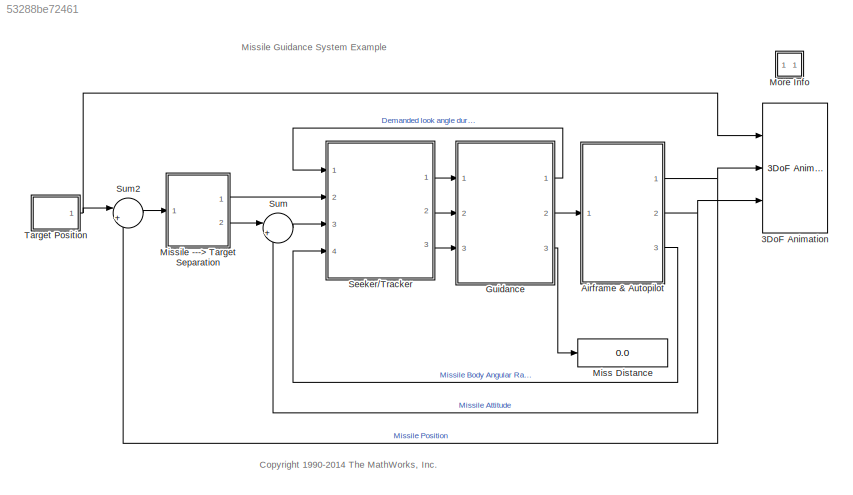
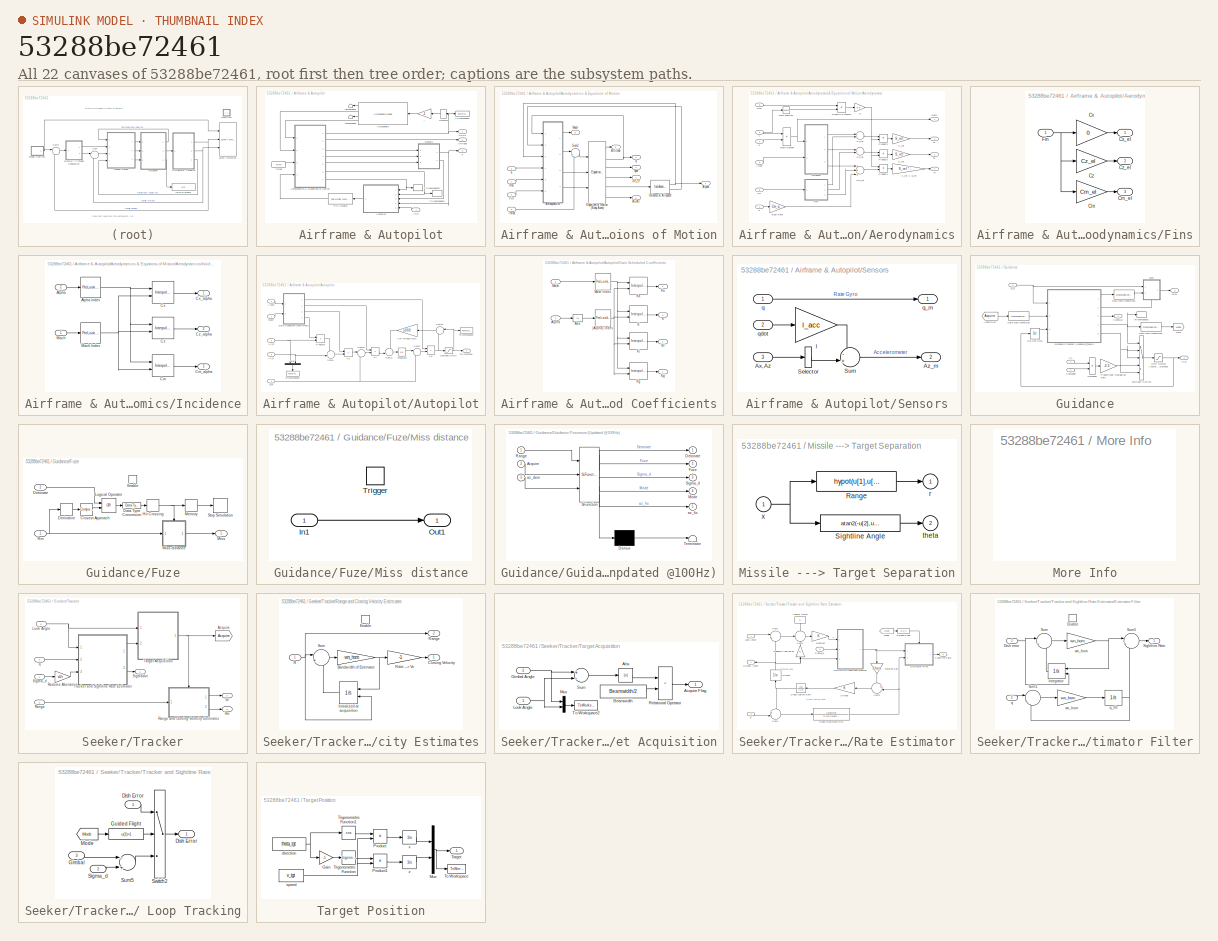
[diagram: thumbnail index - all 22 canvases of the model, root first then tree order]
MODEL slx_53288be72461
KIND model
CONFIG AbsTol = 1e-6
CONFIG EnableMultiTasking = off
CONFIG FixedStep = auto
CONFIG MaxStep = auto
CONFIG MinStep = auto
CONFIG PreLoadFcn = aero_guid_dat
CONFIG RelTol = 1e-3
CONFIG SampleTimeConstraint = Unconstrained
CONFIG Solver = ode45
CONFIG SolverName = ode45
CONFIG StartTime = 0.0
CONFIG StopFcn = aero_guid_plot
CONFIG StopTime = 20
BLOCK [Reference] 3DoF Animation  REF=aerospace/Animation/3DoF Animation  (lib defined in mdl_cf564d925549, slx_1354fe9238a2, +3 more)
  Ports = [3]
  SourceBlock = aerospace/Animation/3DoF Animation
  SourceProductBaseCode = SL
  SourceProductName = Simulink
  SourceType = 3DoF Animation
BLOCK [SubSystem] Airframe & Autopilot
  Ports = [1, 3]
  RequestExecContextInheritance = off
BLOCK [SubSystem] Airframe & Autopilot/Aerodynamics & Equations of Motion
  Ports = [4, 7]
  RequestExecContextInheritance = off
BLOCK [Reference] Airframe & Autopilot/Aerodynamics & Equations of Motion/ Equations of Motion (Body Axes)  REF=aerospace/3DoF  (lib defined in mdl_cf564d925549, slx_1354fe9238a2, +3 more)
Equations
of
Motion / Equations of Motion
(Body Axes)
  Ports = [3, 6]
  SourceBlock = aerospace/3DoF\nEquations\nof\nMotion / Equations of Motion\n(Body Axes)
  SourceProductBaseCode = SL
  SourceProductName = Simulink
  SourceType = 3 DOF equations of motion
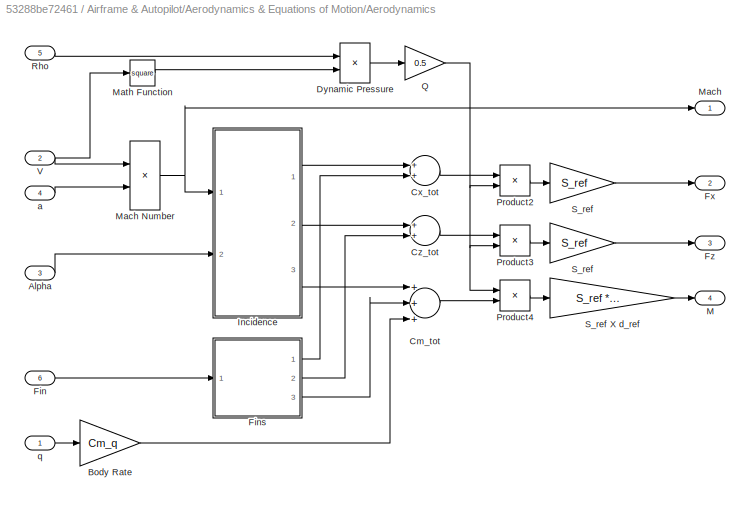
BLOCK [SubSystem] Airframe & Autopilot/Aerodynamics & Equations of Motion/Aerodynamics
  Ports = [6, 4]
  RequestExecContextInheritance = off
BLOCK [Outport] Airframe & Autopilot/Aerodynamics & Equations of Motion/Aerodynamics/ M
  IconDisplay = Port number
  InitialOutput = 0
  Port = 4
BLOCK [Outport] Airframe & Autopilot/Aerodynamics & Equations of Motion/Aerodynamics/ Mach
  IconDisplay = Port number
  InitialOutput = 0
BLOCK [Inport] Airframe & Autopilot/Aerodynamics & Equations of Motion/Aerodynamics/Alpha
  IconDisplay = Port number
  Port = 3
BLOCK [Gain] Airframe & Autopilot/Aerodynamics & Equations of Motion/Aerodynamics/Body Rate
  Gain = Cm_q
BLOCK [Sum] Airframe & Autopilot/Aerodynamics & Equations of Motion/Aerodynamics/Cm_tot
  Inputs = +++
  Ports = [3, 1]
BLOCK [Sum] Airframe & Autopilot/Aerodynamics & Equations of Motion/Aerodynamics/Cx_tot
  Ports = [2, 1]
BLOCK [Sum] Airframe & Autopilot/Aerodynamics & Equations of Motion/Aerodynamics/Cz_tot
  Ports = [2, 1]
BLOCK [Product] Airframe & Autopilot/Aerodynamics & Equations of Motion/Aerodynamics/Dynamic Pressure
  Ports = [2, 1]
  RndMeth = Floor
BLOCK [Inport] Airframe & Autopilot/Aerodynamics & Equations of Motion/Aerodynamics/Fin
  IconDisplay = Port number
  Port = 6
BLOCK [SubSystem] Airframe & Autopilot/Aerodynamics & Equations of Motion/Aerodynamics/Fins
  Ports = [1, 3]
  RequestExecContextInheritance = off
BLOCK [Gain] Airframe & Autopilot/Aerodynamics & Equations of Motion/Aerodynamics/Fins/Cm
  Gain = Cm_el
BLOCK [Outport] Airframe & Autopilot/Aerodynamics & Equations of Motion/Aerodynamics/Fins/Cm_el
  IconDisplay = Port number
  InitialOutput = 0
  Port = 3
BLOCK [Gain] Airframe & Autopilot/Aerodynamics & Equations of Motion/Aerodynamics/Fins/Cx
  Gain = 0
BLOCK [Outport] Airframe & Autopilot/Aerodynamics & Equations of Motion/Aerodynamics/Fins/Cx_el
  IconDisplay = Port number
  InitialOutput = 0
BLOCK [Gain] Airframe & Autopilot/Aerodynamics & Equations of Motion/Aerodynamics/Fins/Cz
  Gain = Cz_el
BLOCK [Outport] Airframe & Autopilot/Aerodynamics & Equations of Motion/Aerodynamics/Fins/Cz_el
  IconDisplay = Port number
  InitialOutput = 0
  Port = 2
BLOCK [Inport] Airframe & Autopilot/Aerodynamics & Equations of Motion/Aerodynamics/Fins/Fin
  IconDisplay = Port number
BLOCK [Outport] Airframe & Autopilot/Aerodynamics & Equations of Motion/Aerodynamics/Fx
  IconDisplay = Port number
  InitialOutput = [0]
  Port = 2
BLOCK [Outport] Airframe & Autopilot/Aerodynamics & Equations of Motion/Aerodynamics/Fz
  IconDisplay = Port number
  InitialOutput = 0
  Port = 3
BLOCK [SubSystem] Airframe & Autopilot/Aerodynamics & Equations of Motion/Aerodynamics/Incidence
  Ports = [2, 3]
  RequestExecContextInheritance = off
BLOCK [Inport] Airframe & Autopilot/Aerodynamics & Equations of Motion/Aerodynamics/Incidence/Alpha
  IconDisplay = Port number
  Port = 2
BLOCK [Reference] Airframe & Autopilot/Aerodynamics & Equations of Motion/Aerodynamics/Incidence/Alpha Index  REF=simulink_need_slupdate/PreLookup
Index Search
  Ports = [1, 1]
  SourceBlock = simulink_need_slupdate/PreLookup\nIndex Search
  SourceProductBaseCode = SL
  SourceProductName = Simulink
  SourceType = LookupIdxSearch
BLOCK [Reference] Airframe & Autopilot/Aerodynamics & Equations of Motion/Aerodynamics/Incidence/Cm  REF=simulink_need_slupdate/Interpolation (n-D)
using PreLookup
  Ports = [2, 1]
  SourceBlock = simulink_need_slupdate/Interpolation (n-D)\nusing PreLookup
  SourceProductBaseCode = SL
  SourceProductName = Simulink
  SourceType = LookupNDInterpIdx
BLOCK [Outport] Airframe & Autopilot/Aerodynamics & Equations of Motion/Aerodynamics/Incidence/Cm_alpha
  IconDisplay = Port number
  InitialOutput = 0
  Port = 3
BLOCK [Reference] Airframe & Autopilot/Aerodynamics & Equations of Motion/Aerodynamics/Incidence/Cx  REF=simulink_need_slupdate/Interpolation (n-D)
using PreLookup
  Ports = [2, 1]
  SourceBlock = simulink_need_slupdate/Interpolation (n-D)\nusing PreLookup
  SourceProductBaseCode = SL
  SourceProductName = Simulink
  SourceType = LookupNDInterpIdx
BLOCK [Outport] Airframe & Autopilot/Aerodynamics & Equations of Motion/Aerodynamics/Incidence/Cx_alpha
  IconDisplay = Port number
  InitialOutput = 0
BLOCK [Reference] Airframe & Autopilot/Aerodynamics & Equations of Motion/Aerodynamics/Incidence/Cz  REF=simulink_need_slupdate/Interpolation (n-D)
using PreLookup
  Ports = [2, 1]
  SourceBlock = simulink_need_slupdate/Interpolation (n-D)\nusing PreLookup
  SourceProductBaseCode = SL
  SourceProductName = Simulink
  SourceType = LookupNDInterpIdx
BLOCK [Outport] Airframe & Autopilot/Aerodynamics & Equations of Motion/Aerodynamics/Incidence/Cz_alpha
  IconDisplay = Port number
  InitialOutput = 0
  Port = 2
BLOCK [Inport] Airframe & Autopilot/Aerodynamics & Equations of Motion/Aerodynamics/Incidence/Mach
  IconDisplay = Port number
BLOCK [Reference] Airframe & Autopilot/Aerodynamics & Equations of Motion/Aerodynamics/Incidence/Mach Index  REF=simulink_need_slupdate/PreLookup
Index Search
  Ports = [1, 1]
  SourceBlock = simulink_need_slupdate/PreLookup\nIndex Search
  SourceProductBaseCode = SL
  SourceProductName = Simulink
  SourceType = LookupIdxSearch
BLOCK [Product] Airframe & Autopilot/Aerodynamics & Equations of Motion/Aerodynamics/Mach Number
  Inputs = */
  Ports = [2, 1]
  RndMeth = Floor
BLOCK [Math] Airframe & Autopilot/Aerodynamics & Equations of Motion/Aerodynamics/Math Function
  Operator = square
  Ports = [1, 1]
BLOCK [Product] Airframe & Autopilot/Aerodynamics & Equations of Motion/Aerodynamics/Product2
  Ports = [2, 1]
  RndMeth = Floor
BLOCK [Product] Airframe & Autopilot/Aerodynamics & Equations of Motion/Aerodynamics/Product3
  Ports = [2, 1]
  RndMeth = Floor
BLOCK [Product] Airframe & Autopilot/Aerodynamics & Equations of Motion/Aerodynamics/Product4
  Ports = [2, 1]
  RndMeth = Floor
BLOCK [Gain] Airframe & Autopilot/Aerodynamics & Equations of Motion/Aerodynamics/Q
  Gain = 0.5
BLOCK [Inport] Airframe & Autopilot/Aerodynamics & Equations of Motion/Aerodynamics/Rho
  IconDisplay = Port number
  Port = 5
BLOCK [Gain] Airframe & Autopilot/Aerodynamics & Equations of Motion/Aerodynamics/S_ref
  Gain = S_ref
BLOCK [Gain] Airframe & Autopilot/Aerodynamics & Equations of Motion/Aerodynamics/S_ref 
  Gain = S_ref
BLOCK [Gain] Airframe & Autopilot/Aerodynamics & Equations of Motion/Aerodynamics/S_ref X d_ref
  Gain = S_ref * d_ref
BLOCK [Inport] Airframe & Autopilot/Aerodynamics & Equations of Motion/Aerodynamics/V
  IconDisplay = Port number
  Port = 2
BLOCK [Inport] Airframe & Autopilot/Aerodynamics & Equations of Motion/Aerodynamics/a
  IconDisplay = Port number
  Port = 4
BLOCK [Inport] Airframe & Autopilot/Aerodynamics & Equations of Motion/Aerodynamics/q
  IconDisplay = Port number
BLOCK [Outport] Airframe & Autopilot/Aerodynamics & Equations of Motion/Alpha
  IconDisplay = Port number
  InitialOutput = 0
  Port = 7
BLOCK [Outport] Airframe & Autopilot/Aerodynamics & Equations of Motion/Attitude
  IconDisplay = Port number
  InitialOutput = 0
  Port = 2
BLOCK [Outport] Airframe & Autopilot/Aerodynamics & Equations of Motion/Ax,Az
  IconDisplay = Port number
  InitialOutput = 0
  Port = 5
BLOCK [Inport] Airframe & Autopilot/Aerodynamics & Equations of Motion/Fin
  IconDisplay = Port number
  Port = 4
BLOCK [Reference] Airframe & Autopilot/Aerodynamics & Equations of Motion/Incidence & Airspeed  REF=aerospace/3DoF  (lib defined in mdl_cf564d925549, slx_1354fe9238a2, +3 more)
Equations
of
Motion /Incidence 
& Airspeed
  Ports = [1, 2]
  SourceBlock = aerospace/3DoF\nEquations\nof\nMotion /Incidence \n& Airspeed
  SourceProductBaseCode = SL
  SourceProductName = Simulink
  SourceType = Incidence and Airspeed
BLOCK [Outport] Airframe & Autopilot/Aerodynamics & Equations of Motion/Mach
  IconDisplay = Port number
  InitialOutput = 0
  Port = 6
BLOCK [Inport] Airframe & Autopilot/Aerodynamics & Equations of Motion/Rho
  IconDisplay = Port number
BLOCK [Sum] Airframe & Autopilot/Aerodynamics & Equations of Motion/Sum2
  IconShape = round
  Inputs = |++
  Ports = [2, 1]
BLOCK [Inport] Airframe & Autopilot/Aerodynamics & Equations of Motion/Thrust
  IconDisplay = Port number
  Port = 3
BLOCK [Outport] Airframe & Autopilot/Aerodynamics & Equations of Motion/Xe,Ze
  IconDisplay = Port number
  InitialOutput = 0
BLOCK [Inport] Airframe & Autopilot/Aerodynamics & Equations of Motion/a
  IconDisplay = Port number
  Port = 2
BLOCK [Outport] Airframe & Autopilot/Aerodynamics & Equations of Motion/q
  IconDisplay = Port number
  InitialOutput = 0
  Port = 3
BLOCK [Outport] Airframe & Autopilot/Aerodynamics & Equations of Motion/qdot
  IconDisplay = Port number
  InitialOutput = 0
  Port = 4
BLOCK [Reference] Airframe & Autopilot/Atmosphere  REF=aerospace/Atmosphere/Atmosphere  (lib defined in mdl_cf564d925549, slx_1354fe9238a2, +3 more)
model
  Ports = [1, 4]
  SourceBlock = aerospace/Atmosphere/Atmosphere\nmodel
  SourceProductBaseCode = SL
  SourceProductName = Simulink
  SourceType = Atmosphere Model
BLOCK [Outport] Airframe & Autopilot/Attitude
  IconDisplay = Port number
  InitialOutput = 0
  Port = 2
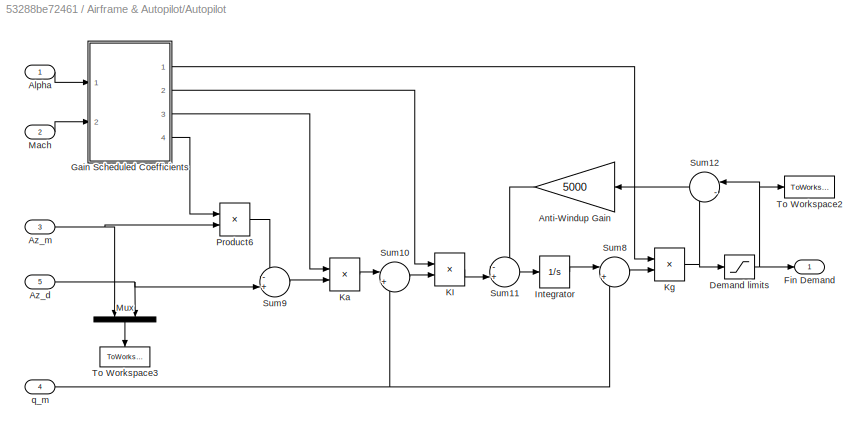
BLOCK [SubSystem] Airframe & Autopilot/Autopilot
  Ports = [5, 1]
  RequestExecContextInheritance = off
BLOCK [Inport] Airframe & Autopilot/Autopilot/Alpha
  IconDisplay = Port number
BLOCK [Gain] Airframe & Autopilot/Autopilot/Anti-Windup Gain
  Gain = 5000
BLOCK [Inport] Airframe & Autopilot/Autopilot/Az_d
  IconDisplay = Port number
  Port = 5
BLOCK [Inport] Airframe & Autopilot/Autopilot/Az_m
  IconDisplay = Port number
  Port = 3
BLOCK [Saturate] Airframe & Autopilot/Autopilot/Demand limits 
  InputPortMap = u0
  LowerLimit = fin_min
  Ports = [1, 1]
  UpperLimit = fin_max
BLOCK [Outport] Airframe & Autopilot/Autopilot/Fin Demand
  IconDisplay = Port number
  InitialOutput = 0
BLOCK [SubSystem] Airframe & Autopilot/Autopilot/Gain Scheduled Coefficients
  Ports = [2, 4]
  RequestExecContextInheritance = off
BLOCK [Abs] Airframe & Autopilot/Autopilot/Gain Scheduled Coefficients/Abs
BLOCK [Inport] Airframe & Autopilot/Autopilot/Gain Scheduled Coefficients/Alpha
  IconDisplay = Port number
BLOCK [Reference] Airframe & Autopilot/Autopilot/Gain Scheduled Coefficients/K  REF=simulink_need_slupdate/Interpolation (n-D)
using PreLookup
  Ports = [2, 1]
  SourceBlock = simulink_need_slupdate/Interpolation (n-D)\nusing PreLookup
  SourceProductBaseCode = SL
  SourceProductName = Simulink
  SourceType = LookupNDInterpIdx
BLOCK [Outport] Airframe & Autopilot/Autopilot/Gain Scheduled Coefficients/K 
  IconDisplay = Port number
  InitialOutput = 0
  Port = 3
BLOCK [Outport] Airframe & Autopilot/Autopilot/Gain Scheduled Coefficients/KI 
  IconDisplay = Port number
  InitialOutput = 0
  Port = 2
BLOCK [Reference] Airframe & Autopilot/Autopilot/Gain Scheduled Coefficients/Ka  REF=simulink_need_slupdate/Interpolation (n-D)
using PreLookup
  Ports = [2, 1]
  SourceBlock = simulink_need_slupdate/Interpolation (n-D)\nusing PreLookup
  SourceProductBaseCode = SL
  SourceProductName = Simulink
  SourceType = LookupNDInterpIdx
BLOCK [Outport] Airframe & Autopilot/Autopilot/Gain Scheduled Coefficients/Ka 
  IconDisplay = Port number
  InitialOutput = 0
  Port = 4
BLOCK [Reference] Airframe & Autopilot/Autopilot/Gain Scheduled Coefficients/Kg  REF=simulink_need_slupdate/Interpolation (n-D)
using PreLookup
  Ports = [2, 1]
  SourceBlock = simulink_need_slupdate/Interpolation (n-D)\nusing PreLookup
  SourceProductBaseCode = SL
  SourceProductName = Simulink
  SourceType = LookupNDInterpIdx
BLOCK [Outport] Airframe & Autopilot/Autopilot/Gain Scheduled Coefficients/Kg 
  IconDisplay = Port number
  InitialOutput = 0
BLOCK [Reference] Airframe & Autopilot/Autopilot/Gain Scheduled Coefficients/Ki  REF=simulink_need_slupdate/Interpolation (n-D)
using PreLookup
  Ports = [2, 1]
  SourceBlock = simulink_need_slupdate/Interpolation (n-D)\nusing PreLookup
  SourceProductBaseCode = SL
  SourceProductName = Simulink
  SourceType = LookupNDInterpIdx
BLOCK [Inport] Airframe & Autopilot/Autopilot/Gain Scheduled Coefficients/Mach
  IconDisplay = Port number
  Port = 2
BLOCK [Reference] Airframe & Autopilot/Autopilot/Gain Scheduled Coefficients/Mach Index  REF=simulink_need_slupdate/PreLookup
Index Search
  Ports = [1, 1]
  SourceBlock = simulink_need_slupdate/PreLookup\nIndex Search
  SourceProductBaseCode = SL
  SourceProductName = Simulink
  SourceType = LookupIdxSearch
BLOCK [Reference] Airframe & Autopilot/Autopilot/Gain Scheduled Coefficients/|Alpha| Index  REF=simulink_need_slupdate/PreLookup
Index Search
  Ports = [1, 1]
  SourceBlock = simulink_need_slupdate/PreLookup\nIndex Search
  SourceProductBaseCode = SL
  SourceProductName = Simulink
  SourceType = LookupIdxSearch
BLOCK [Integrator] Airframe & Autopilot/Autopilot/Integrator
  Ports = [1, 1]
BLOCK [Product] Airframe & Autopilot/Autopilot/KI
  Ports = [2, 1]
  RndMeth = Floor
BLOCK [Product] Airframe & Autopilot/Autopilot/Ka
  Ports = [2, 1]
  RndMeth = Floor
BLOCK [Product] Airframe & Autopilot/Autopilot/Kg
  Ports = [2, 1]
  RndMeth = Floor
BLOCK [Inport] Airframe & Autopilot/Autopilot/Mach
  IconDisplay = Port number
  Port = 2
BLOCK [Mux] Airframe & Autopilot/Autopilot/Mux
  DisplayOption = bar
  Inputs = 2
  Ports = [2, 1]
BLOCK [Product] Airframe & Autopilot/Autopilot/Product6
  Ports = [2, 1]
  RndMeth = Floor
BLOCK [Sum] Airframe & Autopilot/Autopilot/Sum10
  IconShape = round
  Inputs = |++
  Ports = [2, 1]
BLOCK [Sum] Airframe & Autopilot/Autopilot/Sum11
  IconShape = round
  Inputs = -+|
  Ports = [2, 1]
BLOCK [Sum] Airframe & Autopilot/Autopilot/Sum12
  IconShape = round
  Inputs = |-+
  Ports = [2, 1]
BLOCK [Sum] Airframe & Autopilot/Autopilot/Sum8
  IconShape = round
  Inputs = |++
  Ports = [2, 1]
BLOCK [Sum] Airframe & Autopilot/Autopilot/Sum9
  IconShape = round
  Inputs = -+|
  Ports = [2, 1]
BLOCK [ToWorkspace] Airframe & Autopilot/Autopilot/To Workspace2
  MaxDataPoints = inf
  Ports = [1]
  SampleTime = -1
  SaveFormat = Structure With Time
  VariableName = Fin_dem
BLOCK [ToWorkspace] Airframe & Autopilot/Autopilot/To Workspace3
  MaxDataPoints = inf
  Ports = [1]
  SampleTime = -1
  SaveFormat = Structure With Time
  VariableName = Latax
BLOCK [Inport] Airframe & Autopilot/Autopilot/q_m
  IconDisplay = Port number
  Port = 4
BLOCK [Inport] Airframe & Autopilot/Az_d
  IconDisplay = Port number
BLOCK [Reference] Airframe & Autopilot/Fin Actuator  REF=aerospace/Actuators/2nd Order Non-linear Actuator  (lib defined in mdl_cf564d925549, slx_1354fe9238a2, +3 more)
  Ports = [1, 1]
  SourceBlock = aerospace/Actuators/2nd Order Non-linear Actuator
  SourceProductBaseCode = SL
  SourceProductName = Simulink
  SourceType = Nonlinear 2nd order actuator model
BLOCK [Selector] Airframe & Autopilot/Selector
  IndexOptions = Index vector (dialog)
  Indices = [2]
  InputPortWidth = 2
  OutputSizes = 1
  Ports = [1, 1]
BLOCK [SubSystem] Airframe & Autopilot/Sensors
  Ports = [3, 2]
  RequestExecContextInheritance = off
BLOCK [Inport] Airframe & Autopilot/Sensors/Ax,Az
  IconDisplay = Port number
  Port = 3
BLOCK [Outport] Airframe & Autopilot/Sensors/Az_m
  IconDisplay = Port number
  InitialOutput = 0
  Port = 2
BLOCK [Selector] Airframe & Autopilot/Sensors/Selector
  IndexOptions = Index vector (dialog)
  Indices = [2]
  InputPortWidth = 2
  OutputSizes = 1
  Ports = [1, 1]
BLOCK [Sum] Airframe & Autopilot/Sensors/Sum
  IconShape = round
  Inputs = -+|
  Ports = [2, 1]
BLOCK [Gain] Airframe & Autopilot/Sensors/l
  Gain = l_acc
BLOCK [Inport] Airframe & Autopilot/Sensors/q
  IconDisplay = Port number
BLOCK [Outport] Airframe & Autopilot/Sensors/q_m
  IconDisplay = Port number
  InitialOutput = 0
BLOCK [Inport] Airframe & Autopilot/Sensors/qdot
  IconDisplay = Port number
  Port = 2
BLOCK [Constant] Airframe & Autopilot/Thrust
  Value = Thrust
BLOCK [ToWorkspace] Airframe & Autopilot/To Workspace
  MaxDataPoints = inf
  Ports = [1]
  SampleTime = -1
  SaveFormat = Structure With Time
  VariableName = Miss_pos
BLOCK [ToWorkspace] Airframe & Autopilot/To Workspace1
  MaxDataPoints = inf
  Ports = [1]
  SampleTime = -1
  SaveFormat = Structure With Time
  VariableName = Mach
BLOCK [ToWorkspace] Airframe & Autopilot/To Workspace2
  MaxDataPoints = inf
  Ports = [1]
  SampleTime = -1
  SaveFormat = Structure With Time
  VariableName = Incid
BLOCK [Outport] Airframe & Autopilot/Xe,Ze
  IconDisplay = Port number
  InitialOutput = 0
BLOCK [Gain] Airframe & Autopilot/l
  Gain = -1
BLOCK [Outport] Airframe & Autopilot/q
  IconDisplay = Port number
  InitialOutput = 0
  Port = 3
BLOCK [Terminator] Airframe & Autopilot/tempscope1
BLOCK [Terminator] Airframe & Autopilot/tempscope2
BLOCK [SubSystem] Guidance
  Ports = [3, 3]
  RequestExecContextInheritance = off
BLOCK [UnitDelay] Guidance/0.01 Sec Hold
  SampleTime = 0.01
BLOCK [From] Guidance/Acquisition 
  GotoTag = Acquire
  TagVisibility = global
BLOCK [Outport] Guidance/Az_d
  IconDisplay = Port number
  Port = 2
BLOCK [DataTypeConversion] Guidance/Data Type Conversion
  RndMeth = Floor
  SaturateOnIntegerOverflow = off
BLOCK [DataTypeConversion] Guidance/Data Type Conversion1
  RndMeth = Floor
  SaturateOnIntegerOverflow = off
BLOCK [DataTypeConversion] Guidance/Data Type Conversion2
  RndMeth = Floor
  SaturateOnIntegerOverflow = off
BLOCK [Product] Guidance/Demands
  Ports = [2, 1]
  RndMeth = Floor
BLOCK [SubSystem] Guidance/Fuze
  Ports = [2, 1, 1]
  RequestExecContextInheritance = off
  ShowPortLabels = none
  TreatAsAtomicUnit = on
BLOCK [Reference] Guidance/Fuze/Closest Approach  REF=simulink/Logic and Bit
Operations/Compare
To Zero
  Ports = [1, 1]
  SourceBlock = simulink/Logic and Bit\nOperations/Compare\nTo Zero
  SourceProductBaseCode = SL
  SourceProductName = Simulink
  SourceType = Compare To Zero
BLOCK [DataTypeConversion] Guidance/Fuze/Data Type Conversion
  OutDataTypeStr = double
  RndMeth = Floor
  SaturateOnIntegerOverflow = off
BLOCK [Derivative] Guidance/Fuze/Derivative
BLOCK [Inport] Guidance/Fuze/Detonate
  IconDisplay = Port number
  Port = 2
BLOCK [EnablePort] Guidance/Fuze/Enable
  Ports = []
BLOCK [HitCross] Guidance/Fuze/Hit Crossing
  HitCrossingDirection = rising
  Ports = [1, 1]
BLOCK [Logic] Guidance/Fuze/Logical Operator
  IconShape = distinctive
  Operator = OR
  OutDataTypeStr = boolean
  Ports = [2, 1]
BLOCK [Memory] Guidance/Fuze/Memory
BLOCK [Outport] Guidance/Fuze/Miss 
  IconDisplay = Port number
BLOCK [SubSystem] Guidance/Fuze/Miss distance
  Ports = [1, 1, 0, 1]
  RequestExecContextInheritance = off
  ShowPortLabels = none
  TreatAsAtomicUnit = on
BLOCK [Inport] Guidance/Fuze/Miss distance/In1
  IconDisplay = Port number
BLOCK [Outport] Guidance/Fuze/Miss distance/Out1
  IconDisplay = Port number
BLOCK [TriggerPort] Guidance/Fuze/Miss distance/Trigger
  Ports = []
  VariantControl = (inherit)
BLOCK [Inport] Guidance/Fuze/Rm
  IconDisplay = Port number
BLOCK [Stop] Guidance/Fuze/Stop Simulation
BLOCK [Goto] Guidance/Goto
  GotoTag = Mode
  TagVisibility = global
BLOCK [SubSystem] Guidance/Guidance Processor (Updated @100Hz)
  ErrorFcn = Stateflow.Translate.translate
  PermitHierarchicalResolution = ExplicitOnly
  Ports = [3, 5]
  RequestExecContextInheritance = off
  SFBlockType = Chart
  TreatAsAtomicUnit = on
BLOCK [Demux] Guidance/Guidance Processor (Updated @100Hz)/ Demux 
  Outputs = 1
  Ports = [1, 1]
BLOCK [S-Function] Guidance/Guidance Processor (Updated @100Hz)/ SFunction 
  EnableBusSupport = on
  FunctionName = sf_sfun
  PortCounts = [3 6]
  Ports = [3, 6]
  SFcnIsStateOwnerBlock = off
  SFunctionDeploymentMode = off
  Tag = Stateflow S-Function aero_guidance 1
BLOCK [Terminator] Guidance/Guidance Processor (Updated @100Hz)/ Terminator 
BLOCK [Inport] Guidance/Guidance Processor (Updated @100Hz)/Acquire
  IconDisplay = Port number
  Port = 2
BLOCK [Outport] Guidance/Guidance Processor (Updated @100Hz)/Detonate
  IconDisplay = Port number
BLOCK [Outport] Guidance/Guidance Processor (Updated @100Hz)/Fuze
  IconDisplay = Port number
  Port = 2
BLOCK [Outport] Guidance/Guidance Processor (Updated @100Hz)/Mode
  IconDisplay = Port number
  Port = 4
BLOCK [Inport] Guidance/Guidance Processor (Updated @100Hz)/Range
  IconDisplay = Port number
BLOCK [Outport] Guidance/Guidance Processor (Updated @100Hz)/Sigma_d
  IconDisplay = Port number
  Port = 3
BLOCK [Inport] Guidance/Guidance Processor (Updated @100Hz)/az_dem
  IconDisplay = Port number
  Port = 3
BLOCK [Outport] Guidance/Guidance Processor (Updated @100Hz)/az_fix
  IconDisplay = Port number
  Port = 5
BLOCK [Saturate] Guidance/Limit Normal Acceleration Demand 
  InputPortMap = u0
  LowerLimit = -max_acc
  Ports = [1, 1]
  UpperLimit = max_acc
BLOCK [Outport] Guidance/Miss
  IconDisplay = Port number
  Port = 3
BLOCK [MultiPortSwitch] Guidance/Multiport Switch
  Inputs = 4
  Ports = [5, 1]
BLOCK [Gain] Guidance/Proportional Navigation Gain
  Gain = -3.5
BLOCK [Inport] Guidance/Rm
  IconDisplay = Port number
  Port = 3
BLOCK [Outport] Guidance/Sigma_d
  IconDisplay = Port number
BLOCK [Inport] Guidance/Sigmadot
  IconDisplay = Port number
BLOCK [ToWorkspace] Guidance/To Workspace1
  MaxDataPoints = inf
  Ports = [1]
  SaveFormat = Structure With Time
  VariableName = Mode
BLOCK [Inport] Guidance/Vc
  IconDisplay = Port number
  Port = 2
BLOCK [Display] Miss Distance
  Decimation = 1
  Ports = [1]
BLOCK [SubSystem] Missile ---> Target Separation
  Ports = [1, 2]
  RequestExecContextInheritance = off
BLOCK [Fcn] Missile ---> Target Separation/Range
  Expr = hypot(u[1],u[2])
BLOCK [Fcn] Missile ---> Target Separation/Sightline Angle
  Expr = atan2(-u[2],u[1])
BLOCK [Outport] Missile ---> Target Separation/r
  IconDisplay = Port number
  InitialOutput = 0
BLOCK [Outport] Missile ---> Target Separation/theta
  IconDisplay = Port number
  InitialOutput = 0
  Port = 2
BLOCK [Inport] Missile ---> Target Separation/x
  IconDisplay = Port number
BLOCK [SubSystem] More Info
  OpenFcn = showdemo(bdroot(gcb))
  Ports = []
  RequestExecContextInheritance = off
BLOCK [SubSystem] Seeker//Tracker
  Ports = [4, 3]
  RequestExecContextInheritance = off
BLOCK [Goto] Seeker//Tracker/Acquire
  GotoTag = Acquire
  TagVisibility = global
BLOCK [Inport] Seeker//Tracker/Look Angle
  IconDisplay = Port number
  Port = 3
BLOCK [Gain] Seeker//Tracker/Radome Aberration
  Gain = d2r
BLOCK [Inport] Seeker//Tracker/Range
  IconDisplay = Port number
  Port = 2
BLOCK [SubSystem] Seeker//Tracker/Range and Closing Velocity Estimates
  Ports = [1, 2, 1]
  RequestExecContextInheritance = off
  TreatAsAtomicUnit = on
BLOCK [Gain] Seeker//Tracker/Range and Closing Velocity Estimates/Bandwidth of Estimator
  Gain = wn_hom
BLOCK [Outport] Seeker//Tracker/Range and Closing Velocity Estimates/Closing Velocity
  IconDisplay = Port number
  InitialOutput = 0
BLOCK [EnablePort] Seeker//Tracker/Range and Closing Velocity Estimates/Enable
  Ports = []
  StatesWhenEnabling = reset
BLOCK [Integrator] Seeker//Tracker/Range and Closing Velocity Estimates/Initialized at acquisition
  InitialConditionSource = external
  Ports = [2, 1]
BLOCK [Inport] Seeker//Tracker/Range and Closing Velocity Estimates/R
  IconDisplay = Port number
BLOCK [Outport] Seeker//Tracker/Range and Closing Velocity Estimates/Range
  IconDisplay = Port number
  InitialOutput = 0
  Port = 2
BLOCK [Gain] Seeker//Tracker/Range and Closing Velocity Estimates/Rdot ---> Vc
  Gain = -1
BLOCK [Sum] Seeker//Tracker/Range and Closing Velocity Estimates/Sum
  IconShape = round
  Inputs = |+-
  Ports = [2, 1]
BLOCK [Outport] Seeker//Tracker/Rm
  IconDisplay = Port number
  Port = 3
BLOCK [Inport] Seeker//Tracker/Sigma_d
  IconDisplay = Port number
BLOCK [Outport] Seeker//Tracker/Sigmadot
  IconDisplay = Port number
BLOCK [SubSystem] Seeker//Tracker/Target Acquisition
  Ports = [2, 1]
  RequestExecContextInheritance = off
BLOCK [Abs] Seeker//Tracker/Target Acquisition/Abs
BLOCK [Outport] Seeker//Tracker/Target Acquisition/Acquire Flag
  IconDisplay = Port number
BLOCK [Constant] Seeker//Tracker/Target Acquisition/Beamwidth
  Value = Beamwidth/2
BLOCK [Inport] Seeker//Tracker/Target Acquisition/Gimbal Angle
  IconDisplay = Port number
  Port = 2
BLOCK [Inport] Seeker//Tracker/Target Acquisition/Look Angle
  IconDisplay = Port number
BLOCK [Mux] Seeker//Tracker/Target Acquisition/Mux
  DisplayOption = bar
  Inputs = 2
  Ports = [2, 1]
BLOCK [RelationalOperator] Seeker//Tracker/Target Acquisition/Relational Operator
  Operator = <
  OutDataTypeStr = boolean
  Ports = [2, 1]
BLOCK [Sum] Seeker//Tracker/Target Acquisition/Sum
  Inputs = +-
  Ports = [2, 1]
BLOCK [ToWorkspace] Seeker//Tracker/Target Acquisition/To Workspace2
  MaxDataPoints = inf
  Ports = [1]
  SampleTime = -1
  SaveFormat = Structure With Time
  VariableName = Gimbal
BLOCK [SubSystem] Seeker//Tracker/Tracker and Sightline Rate Estimator
  Ports = [3, 2]
  RequestExecContextInheritance = off
BLOCK [Constant] Seeker//Tracker/Tracker and Sightline Rate Estimator/Angular Noise
  Value = 0
BLOCK [SubSystem] Seeker//Tracker/Tracker and Sightline Rate Estimator/Estimator Filter
  Ports = [2, 1, 1]
  RequestExecContextInheritance = off
  TreatAsAtomicUnit = on
BLOCK [Inport] Seeker//Tracker/Tracker and Sightline Rate Estimator/Estimator Filter/Dish error
  IconDisplay = Port number
BLOCK [EnablePort] Seeker//Tracker/Tracker and Sightline Rate Estimator/Estimator Filter/Enable
  Ports = []
  StatesWhenEnabling = reset
BLOCK [Integrator] Seeker//Tracker/Tracker and Sightline Rate Estimator/Estimator Filter/Integrator
  InitialConditionSource = external
  Ports = [2, 1]
BLOCK [Outport] Seeker//Tracker/Tracker and Sightline Rate Estimator/Estimator Filter/Sightline Rate
  IconDisplay = Port number
  InitialOutput = 0
BLOCK [Sum] Seeker//Tracker/Tracker and Sightline Rate Estimator/Estimator Filter/Sum
  IconShape = round
  Inputs = |+-
  Ports = [2, 1]
BLOCK [Sum] Seeker//Tracker/Tracker and Sightline Rate Estimator/Estimator Filter/Sum1
  IconShape = round
  Inputs = |+-
  Ports = [2, 1]
BLOCK [Sum] Seeker//Tracker/Tracker and Sightline Rate Estimator/Estimator Filter/Sum5
  IconShape = round
  Inputs = |++
  Ports = [2, 1]
BLOCK [Inport] Seeker//Tracker/Tracker and Sightline Rate Estimator/Estimator Filter/q
  IconDisplay = Port number
  Port = 2
BLOCK [Integrator] Seeker//Tracker/Tracker and Sightline Rate Estimator/Estimator Filter/q_filt
  Ports = [1, 1]
BLOCK [Gain] Seeker//Tracker/Tracker and Sightline Rate Estimator/Estimator Filter/wn_hom
  Gain = wn_hom
BLOCK [Gain] Seeker//Tracker/Tracker and Sightline Rate Estimator/Estimator Filter/wn_hom  
  Gain = wn_hom
BLOCK [Gain] Seeker//Tracker/Tracker and Sightline Rate Estimator/Gimbal
BLOCK [Integrator] Seeker//Tracker/Tracker and Sightline Rate Estimator/Gimbal 
  LimitOutput = on
  LowerSaturationLimit = min_gimbal
  Ports = [1, 1]
  UpperSaturationLimit = max_gimbal
BLOCK [Outport] Seeker//Tracker/Tracker and Sightline Rate Estimator/Gimbal Angle 
  IconDisplay = Port number
BLOCK [Fcn] Seeker//Tracker/Tracker and Sightline Rate Estimator/Guided Flight
  Expr = u(1)>1
BLOCK [Inport] Seeker//Tracker/Tracker and Sightline Rate Estimator/Look Angle
  IconDisplay = Port number
BLOCK [From] Seeker//Tracker/Tracker and Sightline Rate Estimator/Mode
  GotoTag = Mode
  TagVisibility = global
BLOCK [Gain] Seeker//Tracker/Tracker and Sightline Rate Estimator/Radome Aberration
  Gain = K_r
BLOCK [Gain] Seeker//Tracker/Tracker and Sightline Rate Estimator/Receiver
BLOCK [Outport] Seeker//Tracker/Tracker and Sightline Rate Estimator/Sightline Rate
  IconDisplay = Port number
  Port = 2
BLOCK [Inport] Seeker//Tracker/Tracker and Sightline Rate Estimator/Sigma_d
  IconDisplay = Port number
  Port = 3
BLOCK [TransferFcn] Seeker//Tracker/Tracker and Sightline Rate Estimator/Stabilization Gain
  Denominator = [1 0]
  Numerator = [Ks]
BLOCK [TransferFcn] Seeker//Tracker/Tracker and Sightline Rate Estimator/Stabilizing Rate Gyro
  Denominator = [1 2*0.7*wgyro wgyro^2]
  Numerator = [wgyro^2]
BLOCK [Sum] Seeker//Tracker/Tracker and Sightline Rate Estimator/Sum1
  IconShape = round
  Inputs = |+-
  Ports = [2, 1]
BLOCK [Sum] Seeker//Tracker/Tracker and Sightline Rate Estimator/Sum2
  IconShape = round
  Inputs = +++
  Ports = [3, 1]
BLOCK [Sum] Seeker//Tracker/Tracker and Sightline Rate Estimator/Sum3
  IconShape = round
  Inputs = +-|
  Ports = [2, 1]
BLOCK [Sum] Seeker//Tracker/Tracker and Sightline Rate Estimator/Sum4
  IconShape = round
  Inputs = ++|
  Ports = [2, 1]
BLOCK [SubSystem] Seeker//Tracker/Tracker and Sightline Rate Estimator/Switch to Closed Loop Tracking
  Ports = [3, 1]
  RequestExecContextInheritance = off
BLOCK [Inport] Seeker//Tracker/Tracker and Sightline Rate Estimator/Switch to Closed Loop Tracking/Dish Error
  IconDisplay = Port number
BLOCK [Outport] Seeker//Tracker/Tracker and Sightline Rate Estimator/Switch to Closed Loop Tracking/Dish Error 
  IconDisplay = Port number
BLOCK [Inport] Seeker//Tracker/Tracker and Sightline Rate Estimator/Switch to Closed Loop Tracking/Gimbal
  IconDisplay = Port number
  Port = 3
BLOCK [Fcn] Seeker//Tracker/Tracker and Sightline Rate Estimator/Switch to Closed Loop Tracking/Guided Flight
  Expr = u(1)>1
BLOCK [From] Seeker//Tracker/Tracker and Sightline Rate Estimator/Switch to Closed Loop Tracking/Mode
  GotoTag = Mode
  TagVisibility = global
BLOCK [Inport] Seeker//Tracker/Tracker and Sightline Rate Estimator/Switch to Closed Loop Tracking/Sigma_d
  IconDisplay = Port number
  Port = 2
BLOCK [Sum] Seeker//Tracker/Tracker and Sightline Rate Estimator/Switch to Closed Loop Tracking/Sum5
  Inputs = -+
  Ports = [2, 1]
BLOCK [Switch] Seeker//Tracker/Tracker and Sightline Rate Estimator/Switch to Closed Loop Tracking/Switch2
  Threshold = 0.5
BLOCK [Gain] Seeker//Tracker/Tracker and Sightline Rate Estimator/Tracking Gain
  Gain = 1/tors
BLOCK [Inport] Seeker//Tracker/Tracker and Sightline Rate Estimator/q
  IconDisplay = Port number
  Port = 2
BLOCK [Outport] Seeker//Tracker/Vc
  IconDisplay = Port number
  Port = 2
BLOCK [Inport] Seeker//Tracker/q
  IconDisplay = Port number
  Port = 4
BLOCK [Sum] Sum
  IconShape = round
  Inputs = |+-
  Ports = [2, 1]
BLOCK [Sum] Sum2
  IconShape = round
  Inputs = |+-
  Ports = [2, 1]
BLOCK [SubSystem] Target Position
  Ports = [0, 1]
  RequestExecContextInheritance = off
BLOCK [Gain] Target Position/Gain
  Gain = -1
BLOCK [Mux] Target Position/Mux
  DisplayOption = bar
  Inputs = 2
  Ports = [2, 1]
BLOCK [Product] Target Position/Product
  Ports = [2, 1]
  RndMeth = Floor
BLOCK [Product] Target Position/Product1
  Ports = [2, 1]
  RndMeth = Floor
BLOCK [Outport] Target Position/Target
  IconDisplay = Port number
BLOCK [ToWorkspace] Target Position/To Workspace
  MaxDataPoints = inf
  Ports = [1]
  SampleTime = -1
  SaveFormat = Structure
  VariableName = Tgt_pos
BLOCK [Trigonometry] Target Position/Trigonometric Function
  Ports = [1, 1]
BLOCK [Trigonometry] Target Position/Trigonometric Function1
  Operator = cos
  Ports = [1, 1]
BLOCK [Constant] Target Position/direction
  Value = theta_tgt
BLOCK [Constant] Target Position/speed
  Value = v_tgt
BLOCK [Integrator] Target Position/x
  InitialCondition = pos_tgt(1)
  Ports = [1, 1]
BLOCK [Integrator] Target Position/z
  InitialCondition = pos_tgt(2)
  Ports = [1, 1]
ANNOTATION (root): <copyright redacted>
ANNOTATION (root): Missile Guidance System Example
ANNOTATION Seeker//Tracker/Tracker and Sightline Rate Estimator: Stabilization Loop
ANNOTATION Seeker//Tracker/Tracker and Sightline Rate Estimator: Tracking Loop
LINE Airframe & Autopilot/Aerodynamics & Equations of Motion/ Equations of Motion (Body Axes):1 -> Airframe & Autopilot/Aerodynamics & Equations of Motion/Attitude:1
NET Airframe & Autopilot/Aerodynamics & Equations of Motion/ Equations of Motion (Body Axes):2 -> Airframe & Autopilot/Aerodynamics & Equations of Motion/Aerodynamics:1, Airframe & Autopilot/Aerodynamics & Equations of Motion/q:1
LINE Airframe & Autopilot/Aerodynamics & Equations of Motion/ Equations of Motion (Body Axes):3 -> Airframe & Autopilot/Aerodynamics & Equations of Motion/qdot:1
LINE Airframe & Autopilot/Aerodynamics & Equations of Motion/ Equations of Motion (Body Axes):4 -> Airframe & Autopilot/Aerodynamics & Equations of Motion/Xe,Ze:1
LINE Airframe & Autopilot/Aerodynamics & Equations of Motion/ Equations of Motion (Body Axes):5 -> Airframe & Autopilot/Aerodynamics & Equations of Motion/Incidence & Airspeed:1
LINE Airframe & Autopilot/Aerodynamics & Equations of Motion/ Equations of Motion (Body Axes):6 -> Airframe & Autopilot/Aerodynamics & Equations of Motion/Ax,Az:1
LINE Airframe & Autopilot/Aerodynamics & Equations of Motion/Aerodynamics/Alpha:1 -> Airframe & Autopilot/Aerodynamics & Equations of Motion/Aerodynamics/Incidence:2
LINE Airframe & Autopilot/Aerodynamics & Equations of Motion/Aerodynamics/Body Rate:1 -> Airframe & Autopilot/Aerodynamics & Equations of Motion/Aerodynamics/Cm_tot:3
LINE Airframe & Autopilot/Aerodynamics & Equations of Motion/Aerodynamics/Cm_tot:1 -> Airframe & Autopilot/Aerodynamics & Equations of Motion/Aerodynamics/Product4:2
LINE Airframe & Autopilot/Aerodynamics & Equations of Motion/Aerodynamics/Cx_tot:1 -> Airframe & Autopilot/Aerodynamics & Equations of Motion/Aerodynamics/Product2:1
LINE Airframe & Autopilot/Aerodynamics & Equations of Motion/Aerodynamics/Cz_tot:1 -> Airframe & Autopilot/Aerodynamics & Equations of Motion/Aerodynamics/Product3:1
LINE Airframe & Autopilot/Aerodynamics & Equations of Motion/Aerodynamics/Dynamic Pressure:1 -> Airframe & Autopilot/Aerodynamics & Equations of Motion/Aerodynamics/Q:1
LINE Airframe & Autopilot/Aerodynamics & Equations of Motion/Aerodynamics/Fin:1 -> Airframe & Autopilot/Aerodynamics & Equations of Motion/Aerodynamics/Fins:1
LINE Airframe & Autopilot/Aerodynamics & Equations of Motion/Aerodynamics/Fins/Cm:1 -> Airframe & Autopilot/Aerodynamics & Equations of Motion/Aerodynamics/Fins/Cm_el:1
LINE Airframe & Autopilot/Aerodynamics & Equations of Motion/Aerodynamics/Fins/Cx:1 -> Airframe & Autopilot/Aerodynamics & Equations of Motion/Aerodynamics/Fins/Cx_el:1
LINE Airframe & Autopilot/Aerodynamics & Equations of Motion/Aerodynamics/Fins/Cz:1 -> Airframe & Autopilot/Aerodynamics & Equations of Motion/Aerodynamics/Fins/Cz_el:1
NET Airframe & Autopilot/Aerodynamics & Equations of Motion/Aerodynamics/Fins/Fin:1 -> Airframe & Autopilot/Aerodynamics & Equations of Motion/Aerodynamics/Fins/Cm:1, Airframe & Autopilot/Aerodynamics & Equations of Motion/Aerodynamics/Fins/Cx:1, Airframe & Autopilot/Aerodynamics & Equations of Motion/Aerodynamics/Fins/Cz:1
LINE Airframe & Autopilot/Aerodynamics & Equations of Motion/Aerodynamics/Fins:1 -> Airframe & Autopilot/Aerodynamics & Equations of Motion/Aerodynamics/Cx_tot:2
LINE Airframe & Autopilot/Aerodynamics & Equations of Motion/Aerodynamics/Fins:2 -> Airframe & Autopilot/Aerodynamics & Equations of Motion/Aerodynamics/Cz_tot:2
LINE Airframe & Autopilot/Aerodynamics & Equations of Motion/Aerodynamics/Fins:3 -> Airframe & Autopilot/Aerodynamics & Equations of Motion/Aerodynamics/Cm_tot:2
NET Airframe & Autopilot/Aerodynamics & Equations of Motion/Aerodynamics/Incidence/Alpha Index:1 -> Airframe & Autopilot/Aerodynamics & Equations of Motion/Aerodynamics/Incidence/Cm:1, Airframe & Autopilot/Aerodynamics & Equations of Motion/Aerodynamics/Incidence/Cx:1, Airframe & Autopilot/Aerodynamics & Equations of Motion/Aerodynamics/Incidence/Cz:1
LINE Airframe & Autopilot/Aerodynamics & Equations of Motion/Aerodynamics/Incidence/Alpha:1 -> Airframe & Autopilot/Aerodynamics & Equations of Motion/Aerodynamics/Incidence/Alpha Index:1
LINE Airframe & Autopilot/Aerodynamics & Equations of Motion/Aerodynamics/Incidence/Cm:1 -> Airframe & Autopilot/Aerodynamics & Equations of Motion/Aerodynamics/Incidence/Cm_alpha:1
LINE Airframe & Autopilot/Aerodynamics & Equations of Motion/Aerodynamics/Incidence/Cx:1 -> Airframe & Autopilot/Aerodynamics & Equations of Motion/Aerodynamics/Incidence/Cx_alpha:1
LINE Airframe & Autopilot/Aerodynamics & Equations of Motion/Aerodynamics/Incidence/Cz:1 -> Airframe & Autopilot/Aerodynamics & Equations of Motion/Aerodynamics/Incidence/Cz_alpha:1
NET Airframe & Autopilot/Aerodynamics & Equations of Motion/Aerodynamics/Incidence/Mach Index:1 -> Airframe & Autopilot/Aerodynamics & Equations of Motion/Aerodynamics/Incidence/Cm:2, Airframe & Autopilot/Aerodynamics & Equations of Motion/Aerodynamics/Incidence/Cx:2, Airframe & Autopilot/Aerodynamics & Equations of Motion/Aerodynamics/Incidence/Cz:2
LINE Airframe & Autopilot/Aerodynamics & Equations of Motion/Aerodynamics/Incidence/Mach:1 -> Airframe & Autopilot/Aerodynamics & Equations of Motion/Aerodynamics/Incidence/Mach Index:1
LINE Airframe & Autopilot/Aerodynamics & Equations of Motion/Aerodynamics/Incidence:1 -> Airframe & Autopilot/Aerodynamics & Equations of Motion/Aerodynamics/Cx_tot:1
LINE Airframe & Autopilot/Aerodynamics & Equations of Motion/Aerodynamics/Incidence:2 -> Airframe & Autopilot/Aerodynamics & Equations of Motion/Aerodynamics/Cz_tot:1
LINE Airframe & Autopilot/Aerodynamics & Equations of Motion/Aerodynamics/Incidence:3 -> Airframe & Autopilot/Aerodynamics & Equations of Motion/Aerodynamics/Cm_tot:1
NET Airframe & Autopilot/Aerodynamics & Equations of Motion/Aerodynamics/Mach Number:1 -> Airframe & Autopilot/Aerodynamics & Equations of Motion/Aerodynamics/ Mach:1, Airframe & Autopilot/Aerodynamics & Equations of Motion/Aerodynamics/Incidence:1
LINE Airframe & Autopilot/Aerodynamics & Equations of Motion/Aerodynamics/Math Function:1 -> Airframe & Autopilot/Aerodynamics & Equations of Motion/Aerodynamics/Dynamic Pressure:2
LINE Airframe & Autopilot/Aerodynamics & Equations of Motion/Aerodynamics/Product2:1 -> Airframe & Autopilot/Aerodynamics & Equations of Motion/Aerodynamics/S_ref:1
LINE Airframe & Autopilot/Aerodynamics & Equations of Motion/Aerodynamics/Product3:1 -> Airframe & Autopilot/Aerodynamics & Equations of Motion/Aerodynamics/S_ref :1
LINE Airframe & Autopilot/Aerodynamics & Equations of Motion/Aerodynamics/Product4:1 -> Airframe & Autopilot/Aerodynamics & Equations of Motion/Aerodynamics/S_ref X d_ref:1
NET Airframe & Autopilot/Aerodynamics & Equations of Motion/Aerodynamics/Q:1 -> Airframe & Autopilot/Aerodynamics & Equations of Motion/Aerodynamics/Product2:2, Airframe & Autopilot/Aerodynamics & Equations of Motion/Aerodynamics/Product3:2, Airframe & Autopilot/Aerodynamics & Equations of Motion/Aerodynamics/Product4:1
LINE Airframe & Autopilot/Aerodynamics & Equations of Motion/Aerodynamics/Rho:1 -> Airframe & Autopilot/Aerodynamics & Equations of Motion/Aerodynamics/Dynamic Pressure:1
LINE Airframe & Autopilot/Aerodynamics & Equations of Motion/Aerodynamics/S_ref :1 -> Airframe & Autopilot/Aerodynamics & Equations of Motion/Aerodynamics/Fz:1
LINE Airframe & Autopilot/Aerodynamics & Equations of Motion/Aerodynamics/S_ref X d_ref:1 -> Airframe & Autopilot/Aerodynamics & Equations of Motion/Aerodynamics/ M:1
LINE Airframe & Autopilot/Aerodynamics & Equations of Motion/Aerodynamics/S_ref:1 -> Airframe & Autopilot/Aerodynamics & Equations of Motion/Aerodynamics/Fx:1
NET Airframe & Autopilot/Aerodynamics & Equations of Motion/Aerodynamics/V:1 -> Airframe & Autopilot/Aerodynamics & Equations of Motion/Aerodynamics/Mach Number:1, Airframe & Autopilot/Aerodynamics & Equations of Motion/Aerodynamics/Math Function:1
LINE Airframe & Autopilot/Aerodynamics & Equations of Motion/Aerodynamics/a:1 -> Airframe & Autopilot/Aerodynamics & Equations of Motion/Aerodynamics/Mach Number:2
LINE Airframe & Autopilot/Aerodynamics & Equations of Motion/Aerodynamics/q:1 -> Airframe & Autopilot/Aerodynamics & Equations of Motion/Aerodynamics/Body Rate:1
LINE Airframe & Autopilot/Aerodynamics & Equations of Motion/Aerodynamics:1 -> Airframe & Autopilot/Aerodynamics & Equations of Motion/Mach:1
LINE Airframe & Autopilot/Aerodynamics & Equations of Motion/Aerodynamics:2 -> Airframe & Autopilot/Aerodynamics & Equations of Motion/Sum2:1
LINE Airframe & Autopilot/Aerodynamics & Equations of Motion/Aerodynamics:3 -> Airframe & Autopilot/Aerodynamics & Equations of Motion/ Equations of Motion (Body Axes):2
LINE Airframe & Autopilot/Aerodynamics & Equations of Motion/Aerodynamics:4 -> Airframe & Autopilot/Aerodynamics & Equations of Motion/ Equations of Motion (Body Axes):3
LINE Airframe & Autopilot/Aerodynamics & Equations of Motion/Fin:1 -> Airframe & Autopilot/Aerodynamics & Equations of Motion/Aerodynamics:6
NET Airframe & Autopilot/Aerodynamics & Equations of Motion/Incidence & Airspeed:1 -> Airframe & Autopilot/Aerodynamics & Equations of Motion/Aerodynamics:3, Airframe & Autopilot/Aerodynamics & Equations of Motion/Alpha:1
LINE Airframe & Autopilot/Aerodynamics & Equations of Motion/Incidence & Airspeed:2 -> Airframe & Autopilot/Aerodynamics & Equations of Motion/Aerodynamics:2
LINE Airframe & Autopilot/Aerodynamics & Equations of Motion/Rho:1 -> Airframe & Autopilot/Aerodynamics & Equations of Motion/Aerodynamics:5
LINE Airframe & Autopilot/Aerodynamics & Equations of Motion/Sum2:1 -> Airframe & Autopilot/Aerodynamics & Equations of Motion/ Equations of Motion (Body Axes):1
LINE Airframe & Autopilot/Aerodynamics & Equations of Motion/Thrust:1 -> Airframe & Autopilot/Aerodynamics & Equations of Motion/Sum2:2
LINE Airframe & Autopilot/Aerodynamics & Equations of Motion/a:1 -> Airframe & Autopilot/Aerodynamics & Equations of Motion/Aerodynamics:4
NET Airframe & Autopilot/Aerodynamics & Equations of Motion:1 -> Airframe & Autopilot/Selector:1, Airframe & Autopilot/To Workspace:1, Airframe & Autopilot/Xe,Ze:1
LINE Airframe & Autopilot/Aerodynamics & Equations of Motion:2 -> Airframe & Autopilot/Attitude:1
LINE Airframe & Autopilot/Aerodynamics & Equations of Motion:3 -> Airframe & Autopilot/Sensors:1
LINE Airframe & Autopilot/Aerodynamics & Equations of Motion:4 -> Airframe & Autopilot/Sensors:2
LINE Airframe & Autopilot/Aerodynamics & Equations of Motion:5 -> Airframe & Autopilot/Sensors:3
NET Airframe & Autopilot/Aerodynamics & Equations of Motion:6 -> Airframe & Autopilot/Autopilot:2, Airframe & Autopilot/To Workspace1:1
NET Airframe & Autopilot/Aerodynamics & Equations of Motion:7 -> Airframe & Autopilot/Autopilot:1, Airframe & Autopilot/To Workspace2:1
LINE Airframe & Autopilot/Atmosphere:1 -> Airframe & Autopilot/tempscope1:1
LINE Airframe & Autopilot/Atmosphere:2 -> Airframe & Autopilot/Aerodynamics & Equations of Motion:2
LINE Airframe & Autopilot/Atmosphere:3 -> Airframe & Autopilot/tempscope2:1
LINE Airframe & Autopilot/Atmosphere:4 -> Airframe & Autopilot/Aerodynamics & Equations of Motion:1
LINE Airframe & Autopilot/Autopilot/Alpha:1 -> Airframe & Autopilot/Autopilot/Gain Scheduled Coefficients:1
LINE Airframe & Autopilot/Autopilot/Anti-Windup Gain:1 -> Airframe & Autopilot/Autopilot/Sum11:1
NET Airframe & Autopilot/Autopilot/Az_d:1 -> Airframe & Autopilot/Autopilot/Mux:2, Airframe & Autopilot/Autopilot/Sum9:2
NET Airframe & Autopilot/Autopilot/Az_m:1 -> Airframe & Autopilot/Autopilot/Mux:1, Airframe & Autopilot/Autopilot/Product6:2
NET Airframe & Autopilot/Autopilot/Demand limits :1 -> Airframe & Autopilot/Autopilot/Fin Demand:1, Airframe & Autopilot/Autopilot/Sum12:1, Airframe & Autopilot/Autopilot/To Workspace2:1
LINE Airframe & Autopilot/Autopilot/Gain Scheduled Coefficients/Abs:1 -> Airframe & Autopilot/Autopilot/Gain Scheduled Coefficients/|Alpha| Index:1
LINE Airframe & Autopilot/Autopilot/Gain Scheduled Coefficients/Alpha:1 -> Airframe & Autopilot/Autopilot/Gain Scheduled Coefficients/Abs:1
LINE Airframe & Autopilot/Autopilot/Gain Scheduled Coefficients/K:1 -> Airframe & Autopilot/Autopilot/Gain Scheduled Coefficients/K :1
LINE Airframe & Autopilot/Autopilot/Gain Scheduled Coefficients/Ka:1 -> Airframe & Autopilot/Autopilot/Gain Scheduled Coefficients/Ka :1
LINE Airframe & Autopilot/Autopilot/Gain Scheduled Coefficients/Kg:1 -> Airframe & Autopilot/Autopilot/Gain Scheduled Coefficients/Kg :1
LINE Airframe & Autopilot/Autopilot/Gain Scheduled Coefficients/Ki:1 -> Airframe & Autopilot/Autopilot/Gain Scheduled Coefficients/KI :1
NET Airframe & Autopilot/Autopilot/Gain Scheduled Coefficients/Mach Index:1 -> Airframe & Autopilot/Autopilot/Gain Scheduled Coefficients/K:1, Airframe & Autopilot/Autopilot/Gain Scheduled Coefficients/Ka:1, Airframe & Autopilot/Autopilot/Gain Scheduled Coefficients/Kg:1, Airframe & Autopilot/Autopilot/Gain Scheduled Coefficients/Ki:1
LINE Airframe & Autopilot/Autopilot/Gain Scheduled Coefficients/Mach:1 -> Airframe & Autopilot/Autopilot/Gain Scheduled Coefficients/Mach Index:1
NET Airframe & Autopilot/Autopilot/Gain Scheduled Coefficients/|Alpha| Index:1 -> Airframe & Autopilot/Autopilot/Gain Scheduled Coefficients/K:2, Airframe & Autopilot/Autopilot/Gain Scheduled Coefficients/Ka:2, Airframe & Autopilot/Autopilot/Gain Scheduled Coefficients/Kg:2, Airframe & Autopilot/Autopilot/Gain Scheduled Coefficients/Ki:2
LINE Airframe & Autopilot/Autopilot/Gain Scheduled Coefficients:1 -> Airframe & Autopilot/Autopilot/Kg:1
LINE Airframe & Autopilot/Autopilot/Gain Scheduled Coefficients:2 -> Airframe & Autopilot/Autopilot/KI:1
LINE Airframe & Autopilot/Autopilot/Gain Scheduled Coefficients:3 -> Airframe & Autopilot/Autopilot/Ka:1
LINE Airframe & Autopilot/Autopilot/Gain Scheduled Coefficients:4 -> Airframe & Autopilot/Autopilot/Product6:1
LINE Airframe & Autopilot/Autopilot/Integrator:1 -> Airframe & Autopilot/Autopilot/Sum8:1
LINE Airframe & Autopilot/Autopilot/KI:1 -> Airframe & Autopilot/Autopilot/Sum11:2
LINE Airframe & Autopilot/Autopilot/Ka:1 -> Airframe & Autopilot/Autopilot/Sum10:1
NET Airframe & Autopilot/Autopilot/Kg:1 -> Airframe & Autopilot/Autopilot/Demand limits :1, Airframe & Autopilot/Autopilot/Sum12:2
LINE Airframe & Autopilot/Autopilot/Mach:1 -> Airframe & Autopilot/Autopilot/Gain Scheduled Coefficients:2
LINE Airframe & Autopilot/Autopilot/Mux:1 -> Airframe & Autopilot/Autopilot/To Workspace3:1
LINE Airframe & Autopilot/Autopilot/Product6:1 -> Airframe & Autopilot/Autopilot/Sum9:1
LINE Airframe & Autopilot/Autopilot/Sum10:1 -> Airframe & Autopilot/Autopilot/KI:2
LINE Airframe & Autopilot/Autopilot/Sum11:1 -> Airframe & Autopilot/Autopilot/Integrator:1
LINE Airframe & Autopilot/Autopilot/Sum12:1 -> Airframe & Autopilot/Autopilot/Anti-Windup Gain:1
LINE Airframe & Autopilot/Autopilot/Sum8:1 -> Airframe & Autopilot/Autopilot/Kg:2
LINE Airframe & Autopilot/Autopilot/Sum9:1 -> Airframe & Autopilot/Autopilot/Ka:2
NET Airframe & Autopilot/Autopilot/q_m:1 -> Airframe & Autopilot/Autopilot/Sum10:2, Airframe & Autopilot/Autopilot/Sum8:2
LINE Airframe & Autopilot/Autopilot:1 -> Airframe & Autopilot/Fin Actuator:1
LINE Airframe & Autopilot/Az_d:1 -> Airframe & Autopilot/Autopilot:5
LINE Airframe & Autopilot/Fin Actuator:1 -> Airframe & Autopilot/Aerodynamics & Equations of Motion:4
LINE Airframe & Autopilot/Selector:1 -> Airframe & Autopilot/l:1
LINE Airframe & Autopilot/Sensors/Ax,Az:1 -> Airframe & Autopilot/Sensors/Selector:1
LINE Airframe & Autopilot/Sensors/Selector:1 -> Airframe & Autopilot/Sensors/Sum:2
LINE Airframe & Autopilot/Sensors/Sum:1 -> Airframe & Autopilot/Sensors/Az_m:1
LINE Airframe & Autopilot/Sensors/l:1 -> Airframe & Autopilot/Sensors/Sum:1
LINE Airframe & Autopilot/Sensors/q:1 -> Airframe & Autopilot/Sensors/q_m:1
LINE Airframe & Autopilot/Sensors/qdot:1 -> Airframe & Autopilot/Sensors/l:1
NET Airframe & Autopilot/Sensors:1 -> Airframe & Autopilot/Autopilot:4, Airframe & Autopilot/q:1
LINE Airframe & Autopilot/Sensors:2 -> Airframe & Autopilot/Autopilot:3
LINE Airframe & Autopilot/Thrust:1 -> Airframe & Autopilot/Aerodynamics & Equations of Motion:3
LINE Airframe & Autopilot/l:1 -> Airframe & Autopilot/Atmosphere:1
NET Airframe & Autopilot:1 -> 3DoF Animation:2, Sum2:2
NET Airframe & Autopilot:2 -> 3DoF Animation:3, Sum:2
LINE Airframe & Autopilot:3 -> Seeker//Tracker:4
LINE Guidance/0.01 Sec Hold:1 -> Guidance/Guidance Processor (Updated @100Hz):3
LINE Guidance/Acquisition :1 -> Guidance/Data Type Conversion:1
LINE Guidance/Data Type Conversion1:1 -> Guidance/Fuze:2
LINE Guidance/Data Type Conversion2:1 -> Guidance/Goto:1
LINE Guidance/Data Type Conversion:1 -> Guidance/Guidance Processor (Updated @100Hz):2
LINE Guidance/Demands:1 -> Guidance/Proportional Navigation Gain:1
LINE Guidance/Fuze/Closest Approach:1 -> Guidance/Fuze/Logical Operator:2
LINE Guidance/Fuze/Data Type Conversion:1 -> Guidance/Fuze/Hit Crossing:1
LINE Guidance/Fuze/Derivative:1 -> Guidance/Fuze/Closest Approach:1
LINE Guidance/Fuze/Detonate:1 -> Guidance/Fuze/Logical Operator:1
NET Guidance/Fuze/Hit Crossing:1 -> Guidance/Fuze/Memory:1, Guidance/Fuze/Miss distance:trigger
LINE Guidance/Fuze/Logical Operator:1 -> Guidance/Fuze/Data Type Conversion:1
LINE Guidance/Fuze/Memory:1 -> Guidance/Fuze/Stop Simulation:1
LINE Guidance/Fuze/Miss distance/In1:1 -> Guidance/Fuze/Miss distance/Out1:1
LINE Guidance/Fuze/Miss distance:1 -> Guidance/Fuze/Miss :1
NET Guidance/Fuze/Rm:1 -> Guidance/Fuze/Derivative:1, Guidance/Fuze/Miss distance:1
LINE Guidance/Fuze:1 -> Guidance/Miss:1
LINE Guidance/Guidance Processor (Updated @100Hz):1 -> Guidance/Data Type Conversion1:1
LINE Guidance/Guidance Processor (Updated @100Hz):2 -> Guidance/Fuze:enable
LINE Guidance/Guidance Processor (Updated @100Hz):3 -> Guidance/Sigma_d:1
NET Guidance/Guidance Processor (Updated @100Hz):4 -> Guidance/Data Type Conversion2:1, Guidance/Multiport Switch:1, Guidance/To Workspace1:1
NET Guidance/Guidance Processor (Updated @100Hz):5 -> Guidance/Multiport Switch:2, Guidance/Multiport Switch:3, Guidance/Multiport Switch:5
NET Guidance/Limit Normal Acceleration Demand :1 -> Guidance/0.01 Sec Hold:1, Guidance/Az_d:1
LINE Guidance/Multiport Switch:1 -> Guidance/Limit Normal Acceleration Demand :1
LINE Guidance/Proportional Navigation Gain:1 -> Guidance/Multiport Switch:4
NET Guidance/Rm:1 -> Guidance/Fuze:1, Guidance/Guidance Processor (Updated @100Hz):1
LINE Guidance/Sigmadot:1 -> Guidance/Demands:2
LINE Guidance/Vc:1 -> Guidance/Demands:1
LINE Guidance:1 -> Seeker//Tracker:1
LINE Guidance:2 -> Airframe & Autopilot:1
LINE Guidance:3 -> Miss Distance:1
LINE Missile ---> Target Separation/Range:1 -> Missile ---> Target Separation/r:1
LINE Missile ---> Target Separation/Sightline Angle:1 -> Missile ---> Target Separation/theta:1
NET Missile ---> Target Separation/x:1 -> Missile ---> Target Separation/Range:1, Missile ---> Target Separation/Sightline Angle:1
LINE Missile ---> Target Separation:1 -> Seeker//Tracker:2
LINE Missile ---> Target Separation:2 -> Sum:1
NET Seeker//Tracker/Look Angle:1 -> Seeker//Tracker/Target Acquisition:1, Seeker//Tracker/Tracker and Sightline Rate Estimator:1
LINE Seeker//Tracker/Radome Aberration:1 -> Seeker//Tracker/Tracker and Sightline Rate Estimator:3
NET Seeker//Tracker/Range and Closing Velocity Estimates/Bandwidth of Estimator:1 -> Seeker//Tracker/Range and Closing Velocity Estimates/Initialized at acquisition:1, Seeker//Tracker/Range and Closing Velocity Estimates/Rdot ---> Vc:1
LINE Seeker//Tracker/Range and Closing Velocity Estimates/Initialized at acquisition:1 -> Seeker//Tracker/Range and Closing Velocity Estimates/Sum:2
NET Seeker//Tracker/Range and Closing Velocity Estimates/R:1 -> Seeker//Tracker/Range and Closing Velocity Estimates/Initialized at acquisition:2, Seeker//Tracker/Range and Closing Velocity Estimates/Range:1, Seeker//Tracker/Range and Closing Velocity Estimates/Sum:1
LINE Seeker//Tracker/Range and Closing Velocity Estimates/Rdot ---> Vc:1 -> Seeker//Tracker/Range and Closing Velocity Estimates/Closing Velocity:1
LINE Seeker//Tracker/Range and Closing Velocity Estimates/Sum:1 -> Seeker//Tracker/Range and Closing Velocity Estimates/Bandwidth of Estimator:1
LINE Seeker//Tracker/Range and Closing Velocity Estimates:1 -> Seeker//Tracker/Vc:1
LINE Seeker//Tracker/Range and Closing Velocity Estimates:2 -> Seeker//Tracker/Rm:1
LINE Seeker//Tracker/Range:1 -> Seeker//Tracker/Range and Closing Velocity Estimates:1
LINE Seeker//Tracker/Sigma_d:1 -> Seeker//Tracker/Radome Aberration:1
LINE Seeker//Tracker/Target Acquisition/Abs:1 -> Seeker//Tracker/Target Acquisition/Relational Operator:1
LINE Seeker//Tracker/Target Acquisition/Beamwidth:1 -> Seeker//Tracker/Target Acquisition/Relational Operator:2
NET Seeker//Tracker/Target Acquisition/Gimbal Angle:1 -> Seeker//Tracker/Target Acquisition/Mux:1, Seeker//Tracker/Target Acquisition/Sum:1
NET Seeker//Tracker/Target Acquisition/Look Angle:1 -> Seeker//Tracker/Target Acquisition/Mux:2, Seeker//Tracker/Target Acquisition/Sum:2
LINE Seeker//Tracker/Target Acquisition/Mux:1 -> Seeker//Tracker/Target Acquisition/To Workspace2:1
LINE Seeker//Tracker/Target Acquisition/Relational Operator:1 -> Seeker//Tracker/Target Acquisition/Acquire Flag:1
LINE Seeker//Tracker/Target Acquisition/Sum:1 -> Seeker//Tracker/Target Acquisition/Abs:1
NET Seeker//Tracker/Target Acquisition:1 -> Seeker//Tracker/Acquire:1, Seeker//Tracker/Range and Closing Velocity Estimates:enable
LINE Seeker//Tracker/Tracker and Sightline Rate Estimator/Angular Noise:1 -> Seeker//Tracker/Tracker and Sightline Rate Estimator/Sum2:1
NET Seeker//Tracker/Tracker and Sightline Rate Estimator/Estimator Filter/Dish error:1 -> Seeker//Tracker/Tracker and Sightline Rate Estimator/Estimator Filter/Integrator:2, Seeker//Tracker/Tracker and Sightline Rate Estimator/Estimator Filter/Sum:1
LINE Seeker//Tracker/Tracker and Sightline Rate Estimator/Estimator Filter/Integrator:1 -> Seeker//Tracker/Tracker and Sightline Rate Estimator/Estimator Filter/Sum:2
LINE Seeker//Tracker/Tracker and Sightline Rate Estimator/Estimator Filter/Sum1:1 -> Seeker//Tracker/Tracker and Sightline Rate Estimator/Estimator Filter/wn_hom  :1
LINE Seeker//Tracker/Tracker and Sightline Rate Estimator/Estimator Filter/Sum5:1 -> Seeker//Tracker/Tracker and Sightline Rate Estimator/Estimator Filter/Sightline Rate:1
LINE Seeker//Tracker/Tracker and Sightline Rate Estimator/Estimator Filter/Sum:1 -> Seeker//Tracker/Tracker and Sightline Rate Estimator/Estimator Filter/wn_hom:1
LINE Seeker//Tracker/Tracker and Sightline Rate Estimator/Estimator Filter/q:1 -> Seeker//Tracker/Tracker and Sightline Rate Estimator/Estimator Filter/Sum1:1
NET Seeker//Tracker/Tracker and Sightline Rate Estimator/Estimator Filter/q_filt:1 -> Seeker//Tracker/Tracker and Sightline Rate Estimator/Estimator Filter/Sum1:2, Seeker//Tracker/Tracker and Sightline Rate Estimator/Estimator Filter/Sum5:2
LINE Seeker//Tracker/Tracker and Sightline Rate Estimator/Estimator Filter/wn_hom  :1 -> Seeker//Tracker/Tracker and Sightline Rate Estimator/Estimator Filter/q_filt:1
NET Seeker//Tracker/Tracker and Sightline Rate Estimator/Estimator Filter/wn_hom:1 -> Seeker//Tracker/Tracker and Sightline Rate Estimator/Estimator Filter/Integrator:1, Seeker//Tracker/Tracker and Sightline Rate Estimator/Estimator Filter/Sum5:1
LINE Seeker//Tracker/Tracker and Sightline Rate Estimator/Estimator Filter:1 -> Seeker//Tracker/Tracker and Sightline Rate Estimator/Sightline Rate:1
NET Seeker//Tracker/Tracker and Sightline Rate Estimator/Gimbal :1 -> Seeker//Tracker/Tracker and Sightline Rate Estimator/Gimbal Angle :1, Seeker//Tracker/Tracker and Sightline Rate Estimator/Radome Aberration:1, Seeker//Tracker/Tracker and Sightline Rate Estimator/Sum1:2, Seeker//Tracker/Tracker and Sightline Rate Estimator/Switch to Closed Loop Tracking:3
LINE Seeker//Tracker/Tracker and Sightline Rate Estimator/Gimbal:1 -> Seeker//Tracker/Tracker and Sightline Rate Estimator/Stabilization Gain:1
LINE Seeker//Tracker/Tracker and Sightline Rate Estimator/Guided Flight:1 -> Seeker//Tracker/Tracker and Sightline Rate Estimator/Estimator Filter:enable
LINE Seeker//Tracker/Tracker and Sightline Rate Estimator/Look Angle:1 -> Seeker//Tracker/Tracker and Sightline Rate Estimator/Sum1:1
LINE Seeker//Tracker/Tracker and Sightline Rate Estimator/Mode:1 -> Seeker//Tracker/Tracker and Sightline Rate Estimator/Guided Flight:1
LINE Seeker//Tracker/Tracker and Sightline Rate Estimator/Radome Aberration:1 -> Seeker//Tracker/Tracker and Sightline Rate Estimator/Sum2:3
LINE Seeker//Tracker/Tracker and Sightline Rate Estimator/Receiver:1 -> Seeker//Tracker/Tracker and Sightline Rate Estimator/Switch to Closed Loop Tracking:1
LINE Seeker//Tracker/Tracker and Sightline Rate Estimator/Sigma_d:1 -> Seeker//Tracker/Tracker and Sightline Rate Estimator/Switch to Closed Loop Tracking:2
NET Seeker//Tracker/Tracker and Sightline Rate Estimator/Stabilization Gain:1 -> Seeker//Tracker/Tracker and Sightline Rate Estimator/Gimbal :1, Seeker//Tracker/Tracker and Sightline Rate Estimator/Sum4:1
NET Seeker//Tracker/Tracker and Sightline Rate Estimator/Stabilizing Rate Gyro:1 -> Seeker//Tracker/Tracker and Sightline Rate Estimator/Estimator Filter:2, Seeker//Tracker/Tracker and Sightline Rate Estimator/Sum3:2
LINE Seeker//Tracker/Tracker and Sightline Rate Estimator/Sum1:1 -> Seeker//Tracker/Tracker and Sightline Rate Estimator/Sum2:2
LINE Seeker//Tracker/Tracker and Sightline Rate Estimator/Sum2:1 -> Seeker//Tracker/Tracker and Sightline Rate Estimator/Receiver:1
LINE Seeker//Tracker/Tracker and Sightline Rate Estimator/Sum3:1 -> Seeker//Tracker/Tracker and Sightline Rate Estimator/Gimbal:1
LINE Seeker//Tracker/Tracker and Sightline Rate Estimator/Sum4:1 -> Seeker//Tracker/Tracker and Sightline Rate Estimator/Stabilizing Rate Gyro:1
LINE Seeker//Tracker/Tracker and Sightline Rate Estimator/Switch to Closed Loop Tracking/Dish Error:1 -> Seeker//Tracker/Tracker and Sightline Rate Estimator/Switch to Closed Loop Tracking/Switch2:1
LINE Seeker//Tracker/Tracker and Sightline Rate Estimator/Switch to Closed Loop Tracking/Gimbal:1 -> Seeker//Tracker/Tracker and Sightline Rate Estimator/Switch to Closed Loop Tracking/Sum5:1
LINE Seeker//Tracker/Tracker and Sightline Rate Estimator/Switch to Closed Loop Tracking/Guided Flight:1 -> Seeker//Tracker/Tracker and Sightline Rate Estimator/Switch to Closed Loop Tracking/Switch2:2
LINE Seeker//Tracker/Tracker and Sightline Rate Estimator/Switch to Closed Loop Tracking/Mode:1 -> Seeker//Tracker/Tracker and Sightline Rate Estimator/Switch to Closed Loop Tracking/Guided Flight:1
LINE Seeker//Tracker/Tracker and Sightline Rate Estimator/Switch to Closed Loop Tracking/Sigma_d:1 -> Seeker//Tracker/Tracker and Sightline Rate Estimator/Switch to Closed Loop Tracking/Sum5:2
LINE Seeker//Tracker/Tracker and Sightline Rate Estimator/Switch to Closed Loop Tracking/Sum5:1 -> Seeker//Tracker/Tracker and Sightline Rate Estimator/Switch to Closed Loop Tracking/Switch2:3
LINE Seeker//Tracker/Tracker and Sightline Rate Estimator/Switch to Closed Loop Tracking/Switch2:1 -> Seeker//Tracker/Tracker and Sightline Rate Estimator/Switch to Closed Loop Tracking/Dish Error :1
NET Seeker//Tracker/Tracker and Sightline Rate Estimator/Switch to Closed Loop Tracking:1 -> Seeker//Tracker/Tracker and Sightline Rate Estimator/Estimator Filter:1, Seeker//Tracker/Tracker and Sightline Rate Estimator/Tracking Gain:1
LINE Seeker//Tracker/Tracker and Sightline Rate Estimator/Tracking Gain:1 -> Seeker//Tracker/Tracker and Sightline Rate Estimator/Sum3:1
LINE Seeker//Tracker/Tracker and Sightline Rate Estimator/q:1 -> Seeker//Tracker/Tracker and Sightline Rate Estimator/Sum4:2
LINE Seeker//Tracker/Tracker and Sightline Rate Estimator:1 -> Seeker//Tracker/Target Acquisition:2
LINE Seeker//Tracker/Tracker and Sightline Rate Estimator:2 -> Seeker//Tracker/Sigmadot:1
LINE Seeker//Tracker/q:1 -> Seeker//Tracker/Tracker and Sightline Rate Estimator:2
LINE Seeker//Tracker:1 -> Guidance:1
LINE Seeker//Tracker:2 -> Guidance:2
LINE Seeker//Tracker:3 -> Guidance:3
LINE Sum2:1 -> Missile ---> Target Separation:1
LINE Sum:1 -> Seeker//Tracker:3
LINE Target Position/Gain:1 -> Target Position/Trigonometric Function:1
NET Target Position/Mux:1 -> Target Position/Target:1, Target Position/To Workspace:1
LINE Target Position/Product1:1 -> Target Position/z:1
LINE Target Position/Product:1 -> Target Position/x:1
LINE Target Position/Trigonometric Function1:1 -> Target Position/Product:1
LINE Target Position/Trigonometric Function:1 -> Target Position/Product1:1
NET Target Position/direction:1 -> Target Position/Gain:1, Target Position/Trigonometric Function1:1
NET Target Position/speed:1 -> Target Position/Product1:2, Target Position/Product:2
LINE Target Position/x:1 -> Target Position/Mux:1
LINE Target Position/z:1 -> Target Position/Mux:2
NET Target Position:1 -> 3DoF Animation:1, Sum2:1
note: NET lines group one-source signal fan-out (src -> all destinations, sorted); 1:1 wires keep LINE
CHART Guidance/Guidance Processor
(Updated @100Hz) states=9 transitions=11
  STATE_LABEL 'Guidance'
  STATE_LABEL 'Target_Search\n  en: Mode=1;Sigma_d=0;incr=-100;Acquire_time=t;\n  du: Sigma_d=Sigma_d+0.01*incr;'
  STATE_LABEL '[Sigma_d>30||Sigma_d<-30]  / incr=-incr;'
  STATE_LABEL 'Target_Lock\nen:Mode=2;Acquire_time=t;'
  STATE_LABEL 'Abort\nen:Detonate=1;'
  STATE_LABEL 'Radar_Guided\nen:Mode=3;\nex:az_fix=az_dem;'
  STATE_LABEL 'Blind_Range\nen:Mode=4;'
  STATE_LABEL '{az_fix=-9.81;}'
  STATE_LABEL '[Acquire==0]'
  STATE_LABEL '[t-Acquire_time>7] \n/ send(Timeout, Fuze);'
  STATE_LABEL '[Acquire==1]'
  STATE_LABEL '[t-Acquire_time>0.2]'
  STATE_LABEL '[Range<200]'
  STATE_LABEL 'Target_Search\n  en: Mode=1;Sigma_d=0;incr=-100;Acquire_time=t;\n  du: Sigma_d=Sigma_d+0.01*incr;'
  STATE_LABEL '[Sigma_d>30||Sigma_d<-30]  / incr=-incr;'
  STATE_LABEL 'Target_Lock\nen:Mode=2;Acquire_time=t;'
  STATE_LABEL 'Abort\nen:Detonate=1;'
  STATE_LABEL 'Radar_Guided\nen:Mode=3;\nex:az_fix=az_dem;'
  STATE_LABEL 'Blind_Range\nen:Mode=4;'
  STATE_LABEL 'Fuze'
  STATE_LABEL 'Armed\nen:Fuze=1;'
  STATE_LABEL 'Inert\nen:Fuze = 0;'
  STATE_LABEL '[in(Guidance.Radar_Guided)&&Range<1000]'
  STATE_LABEL 'Timeout'
  STATE_LABEL 'enter(Guidance.Target_Search)'
  STATE_LABEL 'Armed\nen:Fuze=1;'
  STATE_LABEL 'Inert\nen:Fuze = 0;'
